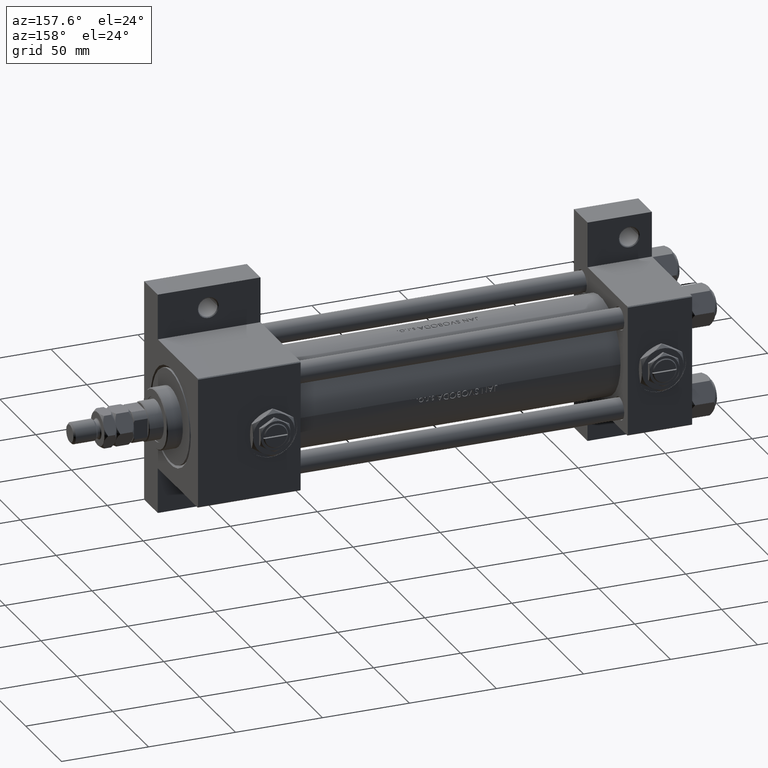
[diagram: clean part render]
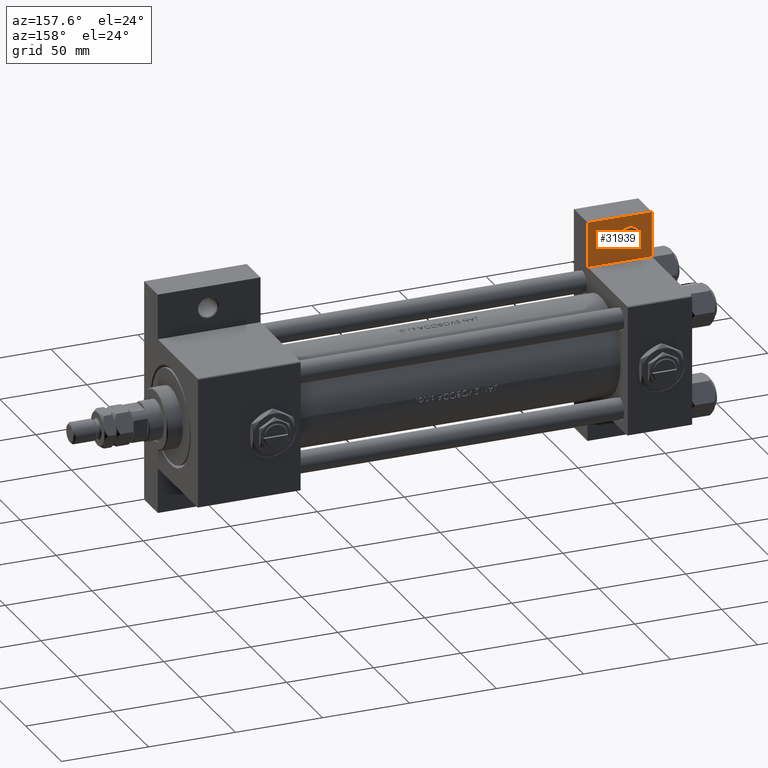
[diagram: same view with one face highlighted and labeled with its STEP entity id]
A machine part, auxiliary view. The second image highlights one B-rep face of the part: STEP entity #31939.
In plain terms, the highlighted planar face has unit normal (0, -1, 0).
Its self-contained STEP definition (entity closure, byte-faithful):
#1833 = VERTEX_POINT ( 'NONE', #48025 ) ;
#2507 = EDGE_CURVE ( 'NONE', #16454, #28302, #9529, .T. ) ;
#3119 = VERTEX_POINT ( 'NONE', #37150 ) ;
#4826 = CARTESIAN_POINT ( 'NONE',  ( 3.977209754999744250E-16, -63.49999999999998579, -18.50000000000000355 ) ) ;
#6271 = EDGE_LOOP ( 'NONE', ( #44832, #23681, #11919, #14614 ) ) ;
#6978 = AXIS2_PLACEMENT_3D ( 'NONE', #20170, #19667, #15308 ) ;
#7050 = CARTESIAN_POINT ( 'NONE',  ( 7.000500000000030809, -51.00000000000002842, -18.50000000000000000 ) ) ;
#8405 = DIRECTION ( 'NONE',  ( -1.000000000000000000, 0.000000000000000000, 0.000000000000000000 ) ) ;
#8652 = LINE ( 'NONE', #4826, #37226 ) ;
#9108 = LINE ( 'NONE', #27394, #45075 ) ;
#9529 = CIRCLE ( 'NONE', #11985, 5.999499999999966526 ) ;
#11919 = ORIENTED_EDGE ( 'NONE', *, *, #37787, .T. ) ;
#11985 = AXIS2_PLACEMENT_3D ( 'NONE', #24294, #20196, #8405 ) ;
#12630 = ORIENTED_EDGE ( 'NONE', *, *, #46638, .T. ) ;
#12667 = EDGE_CURVE ( 'NONE', #39302, #3119, #30077, .T. ) ;
#13488 = DIRECTION ( 'NONE',  ( 4.278042683914906889E-17, -1.000000000000000000, 0.000000000000000000 ) ) ;
#13961 = CARTESIAN_POINT ( 'NONE',  ( 3.977209754999747208E-16, -63.50000000000000000, -18.50000000000000355 ) ) ;
#14614 = ORIENTED_EDGE ( 'NONE', *, *, #12667, .T. ) ;
#15308 = DIRECTION ( 'NONE',  ( -1.000000000000000000, 0.000000000000000000, -0.000000000000000000 ) ) ;
#15327 = VERTEX_POINT ( 'NONE', #23196 ) ;
#15556 = CIRCLE ( 'NONE', #35123, 5.999499999999966526 ) ;
#15570 = FACE_BOUND ( 'NONE', #37941, .T. ) ;
#16054 = VECTOR ( 'NONE', #34559, 1000.000000000000000 ) ;
#16454 = VERTEX_POINT ( 'NONE', #31066 ) ;
#19210 = CARTESIAN_POINT ( 'NONE',  ( -7.145701223179000102E-16, -37.50000000000001421, -18.49999999999999645 ) ) ;
#19457 = EDGE_CURVE ( 'NONE', #3119, #15327, #9108, .T. ) ;
#19667 = DIRECTION ( 'NONE',  ( 0.000000000000000000, 0.000000000000000000, -1.000000000000000000 ) ) ;
#20170 = CARTESIAN_POINT ( 'NONE',  ( 0.000000000000000000, 0.000000000000000000, -18.50000000000000000 ) ) ;
#20196 = DIRECTION ( 'NONE',  ( 0.000000000000000000, 0.000000000000000000, -1.000000000000000000 ) ) ;
#21101 = CARTESIAN_POINT ( 'NONE',  ( 12.99999999999999822, -51.00000000000002842, -18.50000000000000000 ) ) ;
#23196 = CARTESIAN_POINT ( 'NONE',  ( 37.00000000000000000, -37.50000000000000000, -18.50000000000000355 ) ) ;
#23681 = ORIENTED_EDGE ( 'NONE', *, *, #32514, .T. ) ;
#24294 = CARTESIAN_POINT ( 'NONE',  ( 12.99999999999999822, -51.00000000000002842, -18.50000000000000000 ) ) ;
#27394 = CARTESIAN_POINT ( 'NONE',  ( 37.00000000000000000, -63.49999999999998579, -18.50000000000000355 ) ) ;
#27849 = FACE_OUTER_BOUND ( 'NONE', #6271, .T. ) ;
#28135 = CARTESIAN_POINT ( 'NONE',  ( 3.977209754999747208E-16, -63.50000000000000000, -18.50000000000000355 ) ) ;
#28302 = VERTEX_POINT ( 'NONE', #7050 ) ;
#28517 = DIRECTION ( 'NONE',  ( -1.000000000000000000, 0.000000000000000000, 0.000000000000000000 ) ) ;
#30077 = LINE ( 'NONE', #13961, #49753 ) ;
#31066 = CARTESIAN_POINT ( 'NONE',  ( 18.99949999999996564, -51.00000000000002842, -18.50000000000000000 ) ) ;
#31939 = ADVANCED_FACE ( 'NONE', ( #15570, #27849 ), #43426, .F. ) ;
#32514 = EDGE_CURVE ( 'NONE', #15327, #1833, #33800, .T. ) ;
#33800 = LINE ( 'NONE', #19210, #16054 ) ;
#34559 = DIRECTION ( 'NONE',  ( -1.000000000000000000, 0.000000000000000000, 0.000000000000000000 ) ) ;
#35123 = AXIS2_PLACEMENT_3D ( 'NONE', #21101, #36439, #28517 ) ;
#36439 = DIRECTION ( 'NONE',  ( 0.000000000000000000, 0.000000000000000000, -1.000000000000000000 ) ) ;
#36465 = ORIENTED_EDGE ( 'NONE', *, *, #2507, .T. ) ;
#37150 = CARTESIAN_POINT ( 'NONE',  ( 37.00000000000000000, -63.50000000000000000, -18.50000000000000355 ) ) ;
#37226 = VECTOR ( 'NONE', #13488, 1000.000000000000000 ) ;
#37787 = EDGE_CURVE ( 'NONE', #1833, #39302, #8652, .T. ) ;
#37941 = EDGE_LOOP ( 'NONE', ( #36465, #12630 ) ) ;
#39302 = VERTEX_POINT ( 'NONE', #28135 ) ;
#43426 = PLANE ( 'NONE',  #6978 ) ;
#44832 = ORIENTED_EDGE ( 'NONE', *, *, #19457, .T. ) ;
#45075 = VECTOR ( 'NONE', #46039, 1000.000000000000000 ) ;
#45399 = DIRECTION ( 'NONE',  ( 1.000000000000000000, 0.000000000000000000, 0.000000000000000000 ) ) ;
#46039 = DIRECTION ( 'NONE',  ( -0.000000000000000000, 1.000000000000000000, 0.000000000000000000 ) ) ;
#46638 = EDGE_CURVE ( 'NONE', #28302, #16454, #15556, .T. ) ;
#48025 = CARTESIAN_POINT ( 'NONE',  ( -7.145701223179004046E-16, -37.50000000000000711, -18.50000000000000355 ) ) ;
#49753 = VECTOR ( 'NONE', #45399, 1000.000000000000000 ) ;